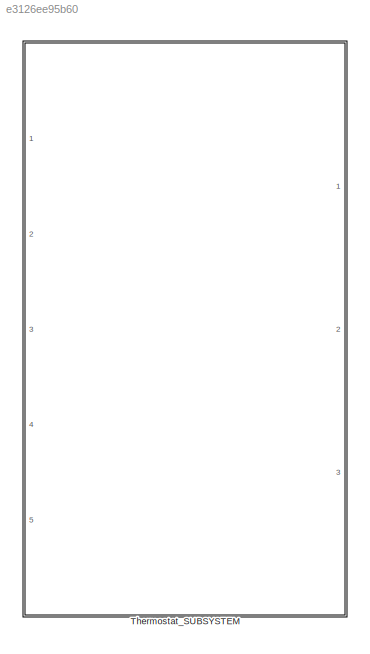
MODEL slx_e3126ee95b60
KIND model
CONFIG AbsTol = auto
CONFIG EnableMultiTasking = off
CONFIG FixedStep = auto
CONFIG MaxStep = auto
CONFIG MinStep = auto
CONFIG RelTol = 1e-3
CONFIG SampleTimeConstraint = Unconstrained
CONFIG SolverName = VariableStepAuto
CONFIG StartTime = 0.0
CONFIG StopTime = 10.0
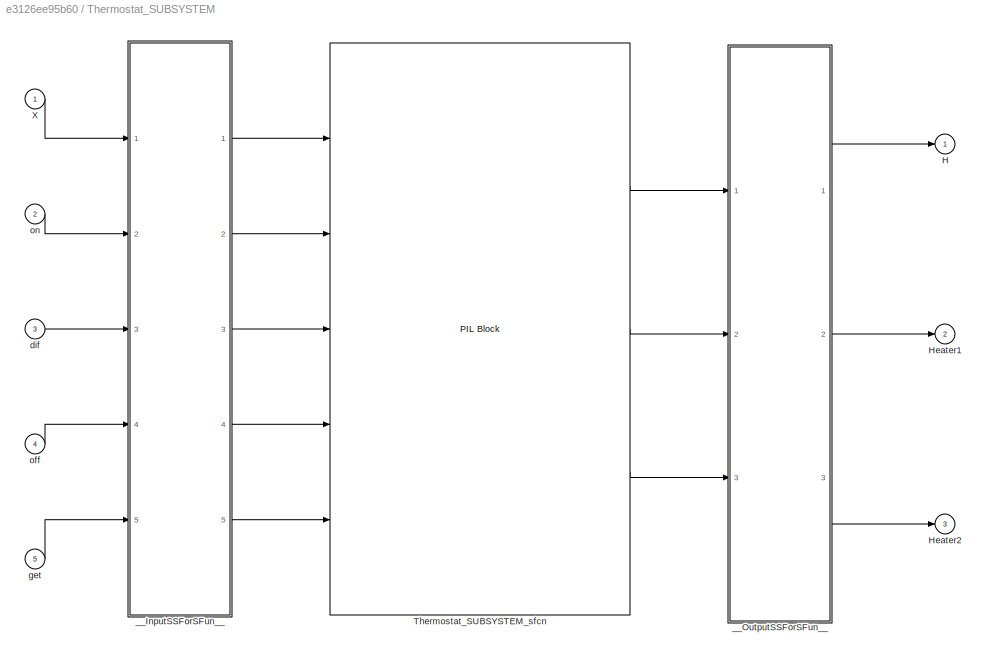
BLOCK [SubSystem] Thermostat_SUBSYSTEM
  DialogController = pil_create_dialog
  LoadFcn = try\n   if ~strcmp(rtw.pil.getPILVersion, '9.10 (R2021a)_15')\n      set_param(gcb, 'DialogController', '');\n      set_param(gcb, 'DialogControllerArgs', '');\n   end\ncatch e\n      set_param(gcb, 'DialogController', '');\n      set_param(gcb, 'DialogControllerArgs', '');\nend
  Ports = [5, 3]
  RequestExecContextInheritance = off
BLOCK [Outport] Thermostat_SUBSYSTEM/H
BLOCK [Outport] Thermostat_SUBSYSTEM/Heater1
  Port = 2
BLOCK [Outport] Thermostat_SUBSYSTEM/Heater2
  Port = 3
BLOCK [Reference] Thermostat_SUBSYSTEM/Thermostat_SUBSYSTEM_sfcn  REF=pil_lib/PIL Block
  Ports = [5, 3]
  SourceBlock = pil_lib/PIL Block
  SourceProductBaseCode = RT
  SourceType = XILBlock
BLOCK [Inport] Thermostat_SUBSYSTEM/X
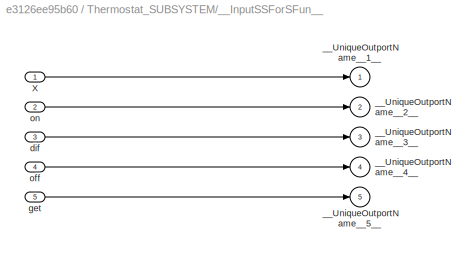
BLOCK [SubSystem] Thermostat_SUBSYSTEM/__InputSSForSFun__
  PermitHierarchicalResolution = ExplicitOnly
  Ports = [5, 5]
  RequestExecContextInheritance = off
BLOCK [Inport] Thermostat_SUBSYSTEM/__InputSSForSFun__/X
BLOCK [Outport] Thermostat_SUBSYSTEM/__InputSSForSFun__/__UniqueOutportName__1__
BLOCK [Outport] Thermostat_SUBSYSTEM/__InputSSForSFun__/__UniqueOutportName__2__
  Port = 2
BLOCK [Outport] Thermostat_SUBSYSTEM/__InputSSForSFun__/__UniqueOutportName__3__
  Port = 3
BLOCK [Outport] Thermostat_SUBSYSTEM/__InputSSForSFun__/__UniqueOutportName__4__
  Port = 4
BLOCK [Outport] Thermostat_SUBSYSTEM/__InputSSForSFun__/__UniqueOutportName__5__
  Port = 5
BLOCK [Inport] Thermostat_SUBSYSTEM/__InputSSForSFun__/dif
  Port = 3
BLOCK [Inport] Thermostat_SUBSYSTEM/__InputSSForSFun__/get
  Port = 5
BLOCK [Inport] Thermostat_SUBSYSTEM/__InputSSForSFun__/off
  Port = 4
BLOCK [Inport] Thermostat_SUBSYSTEM/__InputSSForSFun__/on
  Port = 2
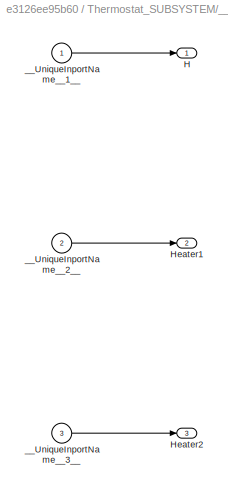
BLOCK [SubSystem] Thermostat_SUBSYSTEM/__OutputSSForSFun__
  PermitHierarchicalResolution = ExplicitOnly
  Ports = [3, 3]
  RequestExecContextInheritance = off
BLOCK [Outport] Thermostat_SUBSYSTEM/__OutputSSForSFun__/H
BLOCK [Outport] Thermostat_SUBSYSTEM/__OutputSSForSFun__/Heater1
  Port = 2
BLOCK [Outport] Thermostat_SUBSYSTEM/__OutputSSForSFun__/Heater2
  Port = 3
BLOCK [Inport] Thermostat_SUBSYSTEM/__OutputSSForSFun__/__UniqueInportName__1__
BLOCK [Inport] Thermostat_SUBSYSTEM/__OutputSSForSFun__/__UniqueInportName__2__
  Port = 2
BLOCK [Inport] Thermostat_SUBSYSTEM/__OutputSSForSFun__/__UniqueInportName__3__
  Port = 3
BLOCK [Inport] Thermostat_SUBSYSTEM/dif
  Port = 3
BLOCK [Inport] Thermostat_SUBSYSTEM/get
  Port = 5
BLOCK [Inport] Thermostat_SUBSYSTEM/off
  Port = 4
BLOCK [Inport] Thermostat_SUBSYSTEM/on
  Port = 2
LINE Thermostat_SUBSYSTEM/Thermostat_SUBSYSTEM_sfcn:1 -> Thermostat_SUBSYSTEM/__OutputSSForSFun__:1
LINE Thermostat_SUBSYSTEM/Thermostat_SUBSYSTEM_sfcn:2 -> Thermostat_SUBSYSTEM/__OutputSSForSFun__:2
LINE Thermostat_SUBSYSTEM/Thermostat_SUBSYSTEM_sfcn:3 -> Thermostat_SUBSYSTEM/__OutputSSForSFun__:3
LINE Thermostat_SUBSYSTEM/X:1 -> Thermostat_SUBSYSTEM/__InputSSForSFun__:1
LINE Thermostat_SUBSYSTEM/__InputSSForSFun__/X:1 -> Thermostat_SUBSYSTEM/__InputSSForSFun__/__UniqueOutportName__1__:1
LINE Thermostat_SUBSYSTEM/__InputSSForSFun__/dif:1 -> Thermostat_SUBSYSTEM/__InputSSForSFun__/__UniqueOutportName__3__:1
LINE Thermostat_SUBSYSTEM/__InputSSForSFun__/get:1 -> Thermostat_SUBSYSTEM/__InputSSForSFun__/__UniqueOutportName__5__:1
LINE Thermostat_SUBSYSTEM/__InputSSForSFun__/off:1 -> Thermostat_SUBSYSTEM/__InputSSForSFun__/__UniqueOutportName__4__:1
LINE Thermostat_SUBSYSTEM/__InputSSForSFun__/on:1 -> Thermostat_SUBSYSTEM/__InputSSForSFun__/__UniqueOutportName__2__:1
LINE Thermostat_SUBSYSTEM/__InputSSForSFun__:1 -> Thermostat_SUBSYSTEM/Thermostat_SUBSYSTEM_sfcn:1
LINE Thermostat_SUBSYSTEM/__InputSSForSFun__:2 -> Thermostat_SUBSYSTEM/Thermostat_SUBSYSTEM_sfcn:2
LINE Thermostat_SUBSYSTEM/__InputSSForSFun__:3 -> Thermostat_SUBSYSTEM/Thermostat_SUBSYSTEM_sfcn:3
LINE Thermostat_SUBSYSTEM/__InputSSForSFun__:4 -> Thermostat_SUBSYSTEM/Thermostat_SUBSYSTEM_sfcn:4
LINE Thermostat_SUBSYSTEM/__InputSSForSFun__:5 -> Thermostat_SUBSYSTEM/Thermostat_SUBSYSTEM_sfcn:5
LINE Thermostat_SUBSYSTEM/__OutputSSForSFun__/__UniqueInportName__1__:1 -> Thermostat_SUBSYSTEM/__OutputSSForSFun__/H:1
LINE Thermostat_SUBSYSTEM/__OutputSSForSFun__/__UniqueInportName__2__:1 -> Thermostat_SUBSYSTEM/__OutputSSForSFun__/Heater1:1
LINE Thermostat_SUBSYSTEM/__OutputSSForSFun__/__UniqueInportName__3__:1 -> Thermostat_SUBSYSTEM/__OutputSSForSFun__/Heater2:1
LINE Thermostat_SUBSYSTEM/__OutputSSForSFun__:1 -> Thermostat_SUBSYSTEM/H:1
LINE Thermostat_SUBSYSTEM/__OutputSSForSFun__:2 -> Thermostat_SUBSYSTEM/Heater1:1
LINE Thermostat_SUBSYSTEM/__OutputSSForSFun__:3 -> Thermostat_SUBSYSTEM/Heater2:1
LINE Thermostat_SUBSYSTEM/dif:1 -> Thermostat_SUBSYSTEM/__InputSSForSFun__:3
LINE Thermostat_SUBSYSTEM/get:1 -> Thermostat_SUBSYSTEM/__InputSSForSFun__:5
LINE Thermostat_SUBSYSTEM/off:1 -> Thermostat_SUBSYSTEM/__InputSSForSFun__:4
LINE Thermostat_SUBSYSTEM/on:1 -> Thermostat_SUBSYSTEM/__InputSSForSFun__:2
